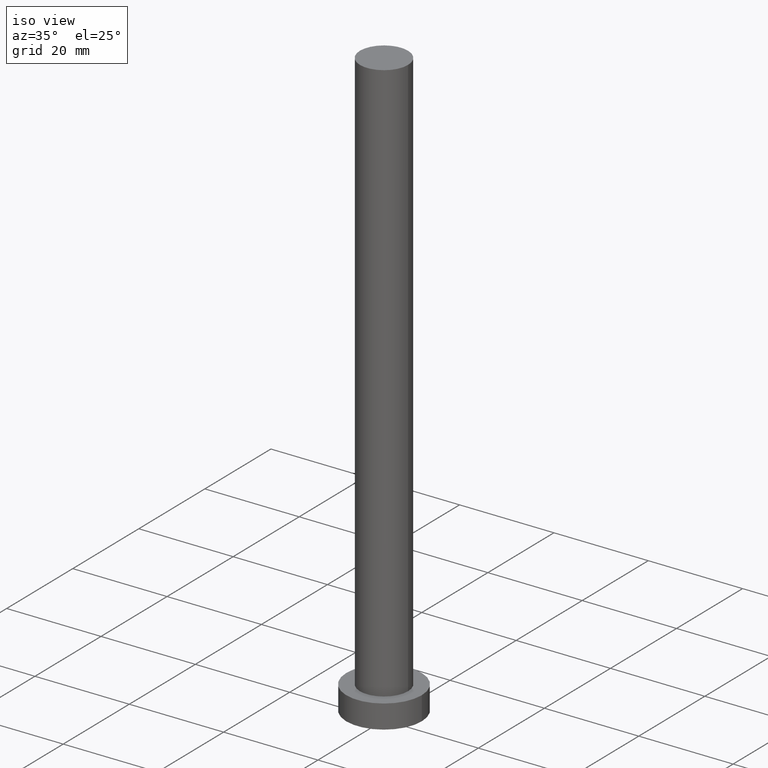
[diagram: clean part render]
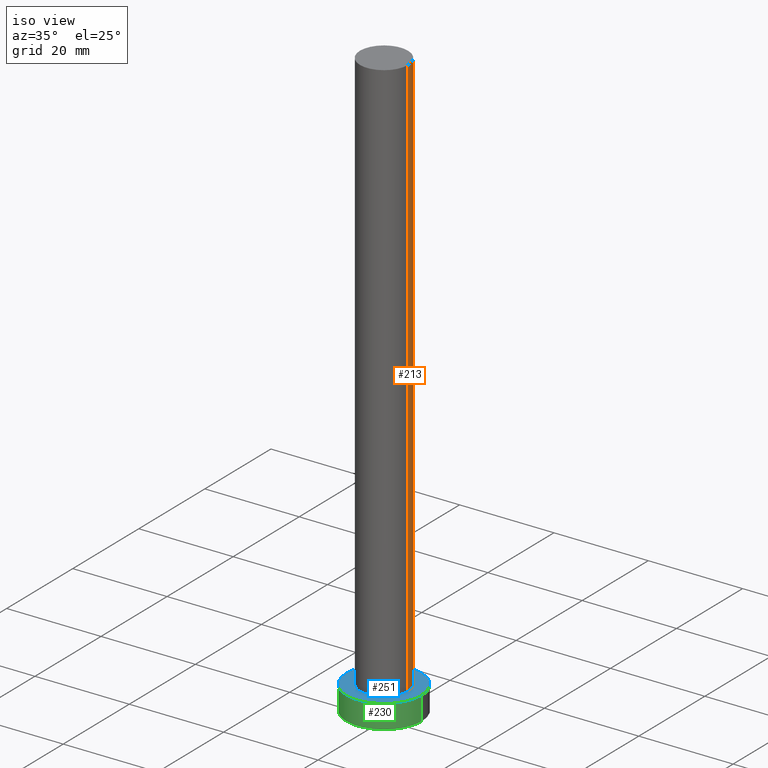
[diagram: same view with three faces highlighted in distinct colors, each labeled with its STEP entity id]
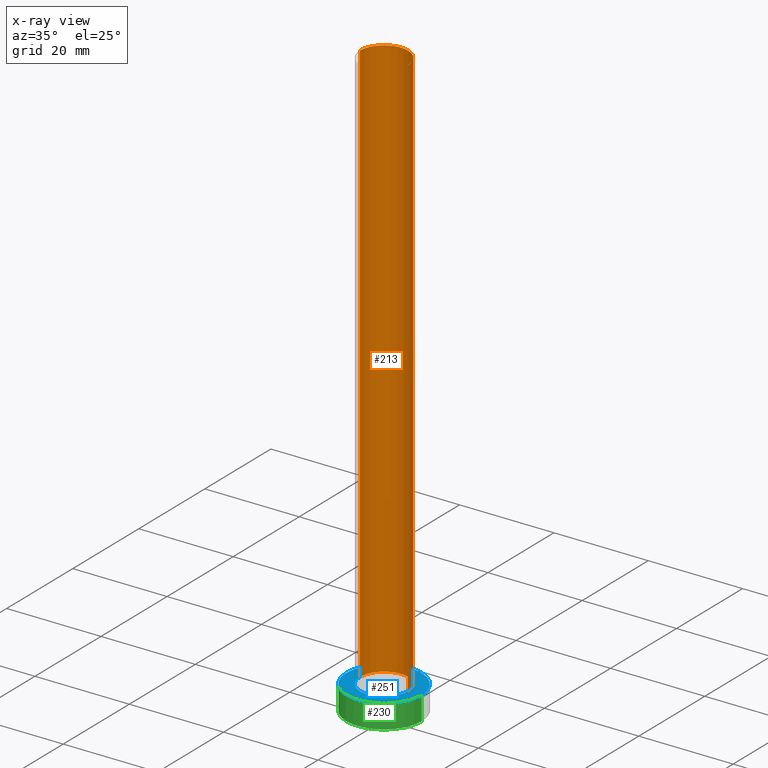
[diagram: x-ray of the same camera — body ghosted, the three highlighted faces saturated]
A machine part, iso view with three faces highlighted in distinct colors.
The next image is the same camera in x-ray (body ghosted, the three faces saturated) — at least one of them is partly hidden behind the body in this view.
Their STEP definitions:

[orange] entity #213 — the highlighted cylindrical surface (edge-blend (fillet) strip) has radius 5.1 mm, axis along (-0, -0, -1).
#1 = LINE ( 'NONE', #50, #9 ) ;
#9 = VECTOR ( 'NONE', #140, 1000.000000000000000 ) ;
#11 = CIRCLE ( 'NONE', #68, 5.100000000000001421 ) ;
#13 = VERTEX_POINT ( 'NONE', #98 ) ;
#15 = DIRECTION ( 'NONE',  ( -0.000000000000000000, -0.000000000000000000, -1.000000000000000000 ) ) ;
#20 = CARTESIAN_POINT ( 'NONE',  ( 0.000000000000000000, 0.000000000000000000, 125.0000000000000000 ) ) ;
#25 = AXIS2_PLACEMENT_3D ( 'NONE', #20, #162, #142 ) ;
#29 = LINE ( 'NONE', #226, #197 ) ;
#41 = CARTESIAN_POINT ( 'NONE',  ( -5.100000000000001421, 0.000000000000000000, 125.0000000000000000 ) ) ;
#44 = CARTESIAN_POINT ( 'NONE',  ( -5.100000000000001421, 0.000000000000000000, 5.000000000000000000 ) ) ;
#50 = CARTESIAN_POINT ( 'NONE',  ( 5.100000000000001421, 6.245698675651502811E-16, 125.0000000000000000 ) ) ;
#60 = EDGE_CURVE ( 'NONE', #107, #207, #29, .T. ) ;
#62 = CIRCLE ( 'NONE', #93, 5.100000000000001421 ) ;
#68 = AXIS2_PLACEMENT_3D ( 'NONE', #89, #105, #184 ) ;
#71 = CARTESIAN_POINT ( 'NONE',  ( 0.000000000000000000, 0.000000000000000000, 5.000000000000000000 ) ) ;
#79 = EDGE_CURVE ( 'NONE', #183, #207, #62, .T. ) ;
#82 = DIRECTION ( 'NONE',  ( 1.000000000000000000, 0.000000000000000000, 0.000000000000000000 ) ) ;
#89 = CARTESIAN_POINT ( 'NONE',  ( 0.000000000000000000, 0.000000000000000000, 125.0000000000000000 ) ) ;
#91 = ORIENTED_EDGE ( 'NONE', *, *, #79, .T. ) ;
#93 = AXIS2_PLACEMENT_3D ( 'NONE', #71, #146, #82 ) ;
#98 = CARTESIAN_POINT ( 'NONE',  ( 5.100000000000001421, 6.245698675651502811E-16, 125.0000000000000000 ) ) ;
#101 = CYLINDRICAL_SURFACE ( 'NONE', #25, 5.100000000000001421 ) ;
#105 = DIRECTION ( 'NONE',  ( 0.000000000000000000, 0.000000000000000000, 1.000000000000000000 ) ) ;
#107 = VERTEX_POINT ( 'NONE', #41 ) ;
#135 = EDGE_LOOP ( 'NONE', ( #211, #193, #91, #221 ) ) ;
#140 = DIRECTION ( 'NONE',  ( -0.000000000000000000, -0.000000000000000000, -1.000000000000000000 ) ) ;
#142 = DIRECTION ( 'NONE',  ( -1.000000000000000000, 0.000000000000000000, 0.000000000000000000 ) ) ;
#146 = DIRECTION ( 'NONE',  ( 0.000000000000000000, 0.000000000000000000, 1.000000000000000000 ) ) ;
#162 = DIRECTION ( 'NONE',  ( -0.000000000000000000, -0.000000000000000000, -1.000000000000000000 ) ) ;
#177 = EDGE_CURVE ( 'NONE', #13, #183, #1, .T. ) ;
#183 = VERTEX_POINT ( 'NONE', #219 ) ;
#184 = DIRECTION ( 'NONE',  ( 1.000000000000000000, 0.000000000000000000, 0.000000000000000000 ) ) ;
#193 = ORIENTED_EDGE ( 'NONE', *, *, #177, .T. ) ;
#197 = VECTOR ( 'NONE', #15, 1000.000000000000000 ) ;
#207 = VERTEX_POINT ( 'NONE', #44 ) ;
#211 = ORIENTED_EDGE ( 'NONE', *, *, #239, .F. ) ;
#213 = ADVANCED_FACE ( 'NONE', ( #240 ), #101, .T. ) ;
#219 = CARTESIAN_POINT ( 'NONE',  ( 5.100000000000001421, 6.245698675651502811E-16, 5.000000000000000000 ) ) ;
#221 = ORIENTED_EDGE ( 'NONE', *, *, #60, .F. ) ;
#226 = CARTESIAN_POINT ( 'NONE',  ( -5.100000000000001421, 0.000000000000000000, 125.0000000000000000 ) ) ;
#239 = EDGE_CURVE ( 'NONE', #13, #107, #11, .T. ) ;
#240 = FACE_OUTER_BOUND ( 'NONE', #135, .T. ) ;

[blue] entity #251 — the highlighted planar face has unit normal (0, 0, 1).
#3 = ORIENTED_EDGE ( 'NONE', *, *, #122, .F. ) ;
#18 = DIRECTION ( 'NONE',  ( 1.000000000000000000, 0.000000000000000000, -0.000000000000000000 ) ) ;
#26 = CARTESIAN_POINT ( 'NONE',  ( 0.000000000000000000, 0.000000000000000000, 5.000000000000000000 ) ) ;
#27 = EDGE_CURVE ( 'NONE', #113, #34, #137, .T. ) ;
#34 = VERTEX_POINT ( 'NONE', #127 ) ;
#38 = DIRECTION ( 'NONE',  ( 1.000000000000000000, 0.000000000000000000, 0.000000000000000000 ) ) ;
#39 = ORIENTED_EDGE ( 'NONE', *, *, #27, .T. ) ;
#44 = CARTESIAN_POINT ( 'NONE',  ( -5.100000000000001421, 0.000000000000000000, 5.000000000000000000 ) ) ;
#51 = CIRCLE ( 'NONE', #86, 8.000000000000000000 ) ;
#62 = CIRCLE ( 'NONE', #93, 5.100000000000001421 ) ;
#64 = DIRECTION ( 'NONE',  ( 1.000000000000000000, 0.000000000000000000, 0.000000000000000000 ) ) ;
#71 = CARTESIAN_POINT ( 'NONE',  ( 0.000000000000000000, 0.000000000000000000, 5.000000000000000000 ) ) ;
#75 = DIRECTION ( 'NONE',  ( 0.000000000000000000, 0.000000000000000000, 1.000000000000000000 ) ) ;
#79 = EDGE_CURVE ( 'NONE', #183, #207, #62, .T. ) ;
#80 = ORIENTED_EDGE ( 'NONE', *, *, #79, .F. ) ;
#82 = DIRECTION ( 'NONE',  ( 1.000000000000000000, 0.000000000000000000, 0.000000000000000000 ) ) ;
#86 = AXIS2_PLACEMENT_3D ( 'NONE', #158, #235, #64 ) ;
#92 = DIRECTION ( 'NONE',  ( 1.000000000000000000, 0.000000000000000000, 0.000000000000000000 ) ) ;
#93 = AXIS2_PLACEMENT_3D ( 'NONE', #71, #146, #82 ) ;
#95 = EDGE_CURVE ( 'NONE', #34, #113, #51, .T. ) ;
#104 = EDGE_LOOP ( 'NONE', ( #187, #39 ) ) ;
#106 = AXIS2_PLACEMENT_3D ( 'NONE', #26, #196, #18 ) ;
#113 = VERTEX_POINT ( 'NONE', #237 ) ;
#119 = PLANE ( 'NONE',  #106 ) ;
#120 = DIRECTION ( 'NONE',  ( 0.000000000000000000, 0.000000000000000000, 1.000000000000000000 ) ) ;
#122 = EDGE_CURVE ( 'NONE', #207, #183, #185, .T. ) ;
#127 = CARTESIAN_POINT ( 'NONE',  ( -8.000000000000000000, 0.000000000000000000, 5.000000000000000000 ) ) ;
#137 = CIRCLE ( 'NONE', #195, 8.000000000000000000 ) ;
#146 = DIRECTION ( 'NONE',  ( 0.000000000000000000, 0.000000000000000000, 1.000000000000000000 ) ) ;
#158 = CARTESIAN_POINT ( 'NONE',  ( 0.000000000000000000, 0.000000000000000000, 5.000000000000000000 ) ) ;
#173 = EDGE_LOOP ( 'NONE', ( #3, #80 ) ) ;
#183 = VERTEX_POINT ( 'NONE', #219 ) ;
#185 = CIRCLE ( 'NONE', #223, 5.100000000000001421 ) ;
#187 = ORIENTED_EDGE ( 'NONE', *, *, #95, .T. ) ;
#195 = AXIS2_PLACEMENT_3D ( 'NONE', #249, #75, #38 ) ;
#196 = DIRECTION ( 'NONE',  ( 0.000000000000000000, 0.000000000000000000, 1.000000000000000000 ) ) ;
#207 = VERTEX_POINT ( 'NONE', #44 ) ;
#216 = FACE_OUTER_BOUND ( 'NONE', #104, .T. ) ;
#219 = CARTESIAN_POINT ( 'NONE',  ( 5.100000000000001421, 6.245698675651502811E-16, 5.000000000000000000 ) ) ;
#223 = AXIS2_PLACEMENT_3D ( 'NONE', #238, #120, #92 ) ;
#235 = DIRECTION ( 'NONE',  ( 0.000000000000000000, 0.000000000000000000, 1.000000000000000000 ) ) ;
#237 = CARTESIAN_POINT ( 'NONE',  ( 8.000000000000000000, 9.797174393178825657E-16, 5.000000000000000000 ) ) ;
#238 = CARTESIAN_POINT ( 'NONE',  ( 0.000000000000000000, 0.000000000000000000, 5.000000000000000000 ) ) ;
#244 = FACE_BOUND ( 'NONE', #173, .T. ) ;
#249 = CARTESIAN_POINT ( 'NONE',  ( 0.000000000000000000, 0.000000000000000000, 5.000000000000000000 ) ) ;
#251 = ADVANCED_FACE ( 'NONE', ( #244, #216 ), #119, .T. ) ;

[green] entity #230 — the highlighted cylindrical surface (partial cylindrical patch) has radius 8 mm, axis along (-0, -0, -1).
#4 = CARTESIAN_POINT ( 'NONE',  ( 8.000000000000000000, 9.797174393178825657E-16, 5.000000000000000000 ) ) ;
#14 = ORIENTED_EDGE ( 'NONE', *, *, #19, .T. ) ;
#19 = EDGE_CURVE ( 'NONE', #34, #42, #172, .T. ) ;
#34 = VERTEX_POINT ( 'NONE', #127 ) ;
#42 = VERTEX_POINT ( 'NONE', #149 ) ;
#51 = CIRCLE ( 'NONE', #86, 8.000000000000000000 ) ;
#57 = VECTOR ( 'NONE', #210, 1000.000000000000000 ) ;
#64 = DIRECTION ( 'NONE',  ( 1.000000000000000000, 0.000000000000000000, 0.000000000000000000 ) ) ;
#66 = CYLINDRICAL_SURFACE ( 'NONE', #215, 8.000000000000000000 ) ;
#84 = DIRECTION ( 'NONE',  ( 0.000000000000000000, 0.000000000000000000, 1.000000000000000000 ) ) ;
#86 = AXIS2_PLACEMENT_3D ( 'NONE', #158, #235, #64 ) ;
#90 = CARTESIAN_POINT ( 'NONE',  ( 0.000000000000000000, 0.000000000000000000, 0.000000000000000000 ) ) ;
#95 = EDGE_CURVE ( 'NONE', #34, #113, #51, .T. ) ;
#113 = VERTEX_POINT ( 'NONE', #237 ) ;
#115 = VERTEX_POINT ( 'NONE', #161 ) ;
#123 = DIRECTION ( 'NONE',  ( -1.000000000000000000, 0.000000000000000000, 0.000000000000000000 ) ) ;
#124 = ORIENTED_EDGE ( 'NONE', *, *, #246, .F. ) ;
#125 = CARTESIAN_POINT ( 'NONE',  ( 0.000000000000000000, 0.000000000000000000, 5.000000000000000000 ) ) ;
#127 = CARTESIAN_POINT ( 'NONE',  ( -8.000000000000000000, 0.000000000000000000, 5.000000000000000000 ) ) ;
#149 = CARTESIAN_POINT ( 'NONE',  ( -8.000000000000000000, 0.000000000000000000, 0.000000000000000000 ) ) ;
#156 = CIRCLE ( 'NONE', #214, 8.000000000000000000 ) ;
#158 = CARTESIAN_POINT ( 'NONE',  ( 0.000000000000000000, 0.000000000000000000, 5.000000000000000000 ) ) ;
#161 = CARTESIAN_POINT ( 'NONE',  ( 8.000000000000000000, 9.797174393178825657E-16, 0.000000000000000000 ) ) ;
#168 = VECTOR ( 'NONE', #203, 1000.000000000000000 ) ;
#172 = LINE ( 'NONE', #232, #57 ) ;
#175 = ORIENTED_EDGE ( 'NONE', *, *, #95, .F. ) ;
#180 = FACE_OUTER_BOUND ( 'NONE', #192, .T. ) ;
#181 = ORIENTED_EDGE ( 'NONE', *, *, #194, .T. ) ;
#192 = EDGE_LOOP ( 'NONE', ( #124, #175, #14, #181 ) ) ;
#194 = EDGE_CURVE ( 'NONE', #42, #115, #156, .T. ) ;
#203 = DIRECTION ( 'NONE',  ( -0.000000000000000000, -0.000000000000000000, -1.000000000000000000 ) ) ;
#210 = DIRECTION ( 'NONE',  ( -0.000000000000000000, -0.000000000000000000, -1.000000000000000000 ) ) ;
#214 = AXIS2_PLACEMENT_3D ( 'NONE', #90, #84, #254 ) ;
#215 = AXIS2_PLACEMENT_3D ( 'NONE', #125, #220, #123 ) ;
#218 = LINE ( 'NONE', #4, #168 ) ;
#220 = DIRECTION ( 'NONE',  ( -0.000000000000000000, -0.000000000000000000, -1.000000000000000000 ) ) ;
#230 = ADVANCED_FACE ( 'NONE', ( #180 ), #66, .T. ) ;
#232 = CARTESIAN_POINT ( 'NONE',  ( -8.000000000000000000, 0.000000000000000000, 5.000000000000000000 ) ) ;
#235 = DIRECTION ( 'NONE',  ( 0.000000000000000000, 0.000000000000000000, 1.000000000000000000 ) ) ;
#237 = CARTESIAN_POINT ( 'NONE',  ( 8.000000000000000000, 9.797174393178825657E-16, 5.000000000000000000 ) ) ;
#246 = EDGE_CURVE ( 'NONE', #113, #115, #218, .T. ) ;
#254 = DIRECTION ( 'NONE',  ( 1.000000000000000000, 0.000000000000000000, 0.000000000000000000 ) ) ;